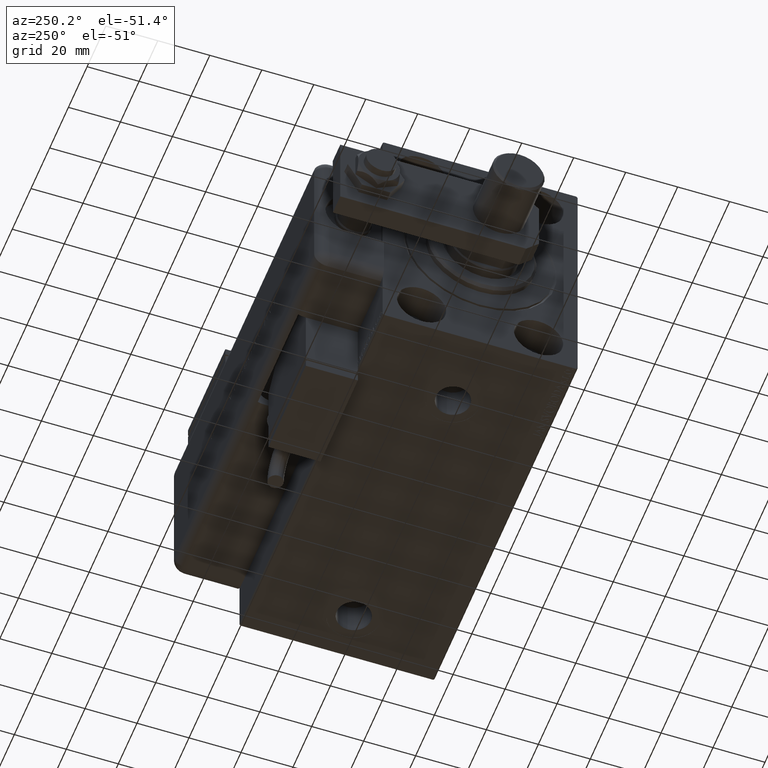
[diagram: clean part render]
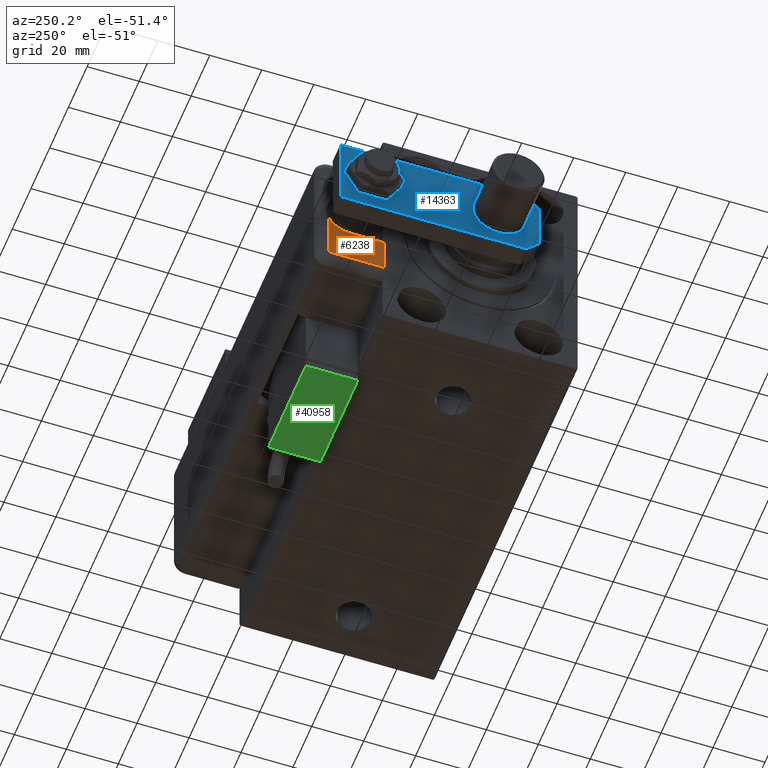
[diagram: same view with three faces highlighted in distinct colors, each labeled with its STEP entity id]
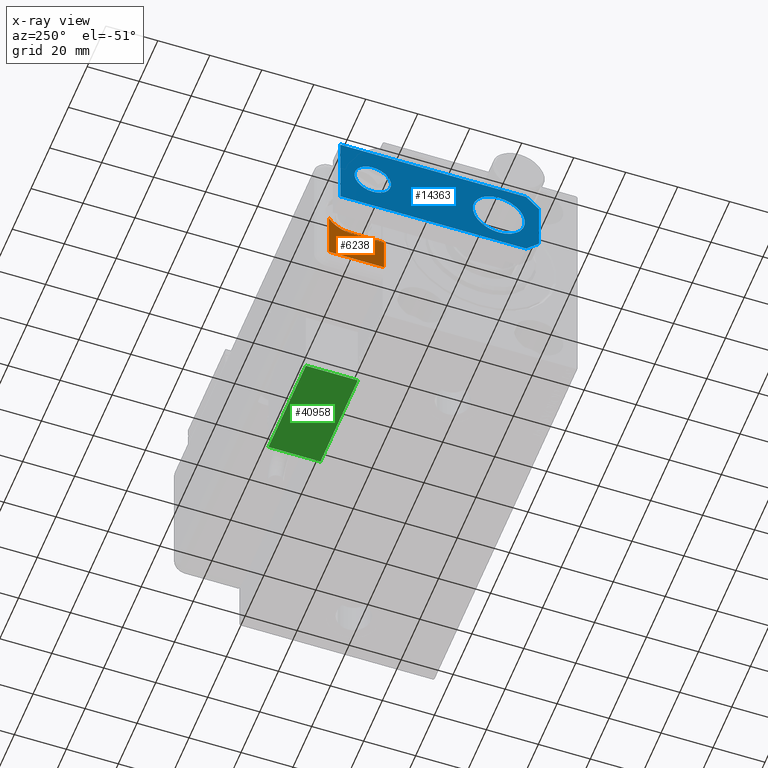
[diagram: x-ray of the same camera — body ghosted, the three highlighted faces saturated]
A machine part, auxiliary view with three faces highlighted in distinct colors.
The next image is the same camera in x-ray (body ghosted, the three faces saturated) — at least one of them is partly hidden behind the body in this view.
Their STEP definitions:

[orange] entity #6238 — the highlighted planar face has unit normal (-1, 0, 0).
#1084 = DIRECTION ( 'NONE',  ( 0.000000000000000000, 0.000000000000000000, 1.000000000000000000 ) ) ;
#3536 = VECTOR ( 'NONE', #53879, 1000.000000000000000 ) ;
#3571 = CARTESIAN_POINT ( 'NONE',  ( -23.99999999999999289, 21.21742430504414045, 157.0000000000000000 ) ) ;
#3728 = AXIS2_PLACEMENT_3D ( 'NONE', #57750, #1084, #24432 ) ;
#6238 = ADVANCED_FACE ( 'NONE', ( #12013 ), #16678, .T. ) ;
#7146 = CARTESIAN_POINT ( 'NONE',  ( -28.99999999999999645, -9.421223957302265857E-15, 157.0000000000000000 ) ) ;
#9196 = ORIENTED_EDGE ( 'NONE', *, *, #16487, .T. ) ;
#9759 = ORIENTED_EDGE ( 'NONE', *, *, #24083, .T. ) ;
#9833 = DIRECTION ( 'NONE',  ( 1.000000000000000000, 0.000000000000000000, 0.000000000000000000 ) ) ;
#10617 = AXIS2_PLACEMENT_3D ( 'NONE', #35661, #44408, #49066 ) ;
#10988 = ORIENTED_EDGE ( 'NONE', *, *, #40543, .F. ) ;
#11682 = EDGE_CURVE ( 'NONE', #26626, #50804, #45473, .T. ) ;
#12013 = FACE_OUTER_BOUND ( 'NONE', #44081, .T. ) ;
#13239 = ORIENTED_EDGE ( 'NONE', *, *, #32956, .T. ) ;
#13275 = VECTOR ( 'NONE', #30064, 1000.000000000000000 ) ;
#13518 = ORIENTED_EDGE ( 'NONE', *, *, #11682, .F. ) ;
#14655 = CIRCLE ( 'NONE', #19640, 0.4174243050441631131 ) ;
#16487 = EDGE_CURVE ( 'NONE', #20552, #30161, #20253, .T. ) ;
#16677 = LINE ( 'NONE', #21335, #13275 ) ;
#16678 = PLANE ( 'NONE',  #10617 ) ;
#19640 = AXIS2_PLACEMENT_3D ( 'NONE', #25351, #38762, #9833 ) ;
#20253 = LINE ( 'NONE', #7146, #3536 ) ;
#20552 = VERTEX_POINT ( 'NONE', #45385 ) ;
#21335 = CARTESIAN_POINT ( 'NONE',  ( -24.41742430504415751, -1.040834085586084257E-14, 157.0000000000000000 ) ) ;
#24083 = EDGE_CURVE ( 'NONE', #43912, #57854, #14655, .T. ) ;
#24432 = DIRECTION ( 'NONE',  ( 1.000000000000000000, 0.000000000000000000, 0.000000000000000000 ) ) ;
#25351 = CARTESIAN_POINT ( 'NONE',  ( -23.99999999999999645, 20.79999999999998295, 157.0000000000000000 ) ) ;
#25809 = DIRECTION ( 'NONE',  ( 1.387778820721720319E-16, -1.000000000000000000, -0.000000000000000000 ) ) ;
#26626 = VERTEX_POINT ( 'NONE', #44848 ) ;
#30064 = DIRECTION ( 'NONE',  ( -0.000000000000000000, -1.000000000000000000, 0.000000000000000000 ) ) ;
#30161 = VERTEX_POINT ( 'NONE', #33387 ) ;
#31693 = LINE ( 'NONE', #54147, #32032 ) ;
#32032 = VECTOR ( 'NONE', #25809, 1000.000000000000000 ) ;
#32956 = EDGE_CURVE ( 'NONE', #26626, #43912, #46226, .T. ) ;
#33387 = CARTESIAN_POINT ( 'NONE',  ( -10.00000000000000178, -8.673617379884035472E-16, 157.0000000000000000 ) ) ;
#35661 = CARTESIAN_POINT ( 'NONE',  ( 23.99999999999999289, 20.79999999999998295, 157.0000000000000000 ) ) ;
#38762 = DIRECTION ( 'NONE',  ( 0.000000000000000000, 0.000000000000000000, 1.000000000000000000 ) ) ;
#40543 = EDGE_CURVE ( 'NONE', #50804, #30161, #31693, .T. ) ;
#43459 = ORIENTED_EDGE ( 'NONE', *, *, #49167, .T. ) ;
#43912 = VERTEX_POINT ( 'NONE', #54749 ) ;
#44081 = EDGE_LOOP ( 'NONE', ( #10988, #13518, #13239, #9759, #43459, #9196 ) ) ;
#44408 = DIRECTION ( 'NONE',  ( 0.000000000000000000, 0.000000000000000000, 1.000000000000000000 ) ) ;
#44848 = CARTESIAN_POINT ( 'NONE',  ( -4.899643580265686360, 21.21742430504414045, 157.0000000000000000 ) ) ;
#45385 = CARTESIAN_POINT ( 'NONE',  ( -24.41742430504415751, -1.040834085586084257E-14, 157.0000000000000000 ) ) ;
#45473 = CIRCLE ( 'NONE', #3728, 10.00000000000000178 ) ;
#45926 = DIRECTION ( 'NONE',  ( -1.000000000000000000, 0.000000000000000000, -0.000000000000000000 ) ) ;
#46226 = LINE ( 'NONE', #3571, #54647 ) ;
#49066 = DIRECTION ( 'NONE',  ( 1.000000000000000000, 0.000000000000000000, -0.000000000000000000 ) ) ;
#49167 = EDGE_CURVE ( 'NONE', #57854, #20552, #16677, .T. ) ;
#50804 = VERTEX_POINT ( 'NONE', #56359 ) ;
#51525 = CARTESIAN_POINT ( 'NONE',  ( -24.41742430504416106, 20.79999999999998295, 157.0000000000000000 ) ) ;
#53879 = DIRECTION ( 'NONE',  ( 1.000000000000000000, 0.000000000000000000, 0.000000000000000000 ) ) ;
#54147 = CARTESIAN_POINT ( 'NONE',  ( -10.00000000000000178, -8.673617379884035472E-16, 157.0000000000000000 ) ) ;
#54647 = VECTOR ( 'NONE', #45926, 1000.000000000000000 ) ;
#54749 = CARTESIAN_POINT ( 'NONE',  ( -23.99999999999999645, 21.21742430504414045, 157.0000000000000000 ) ) ;
#56359 = CARTESIAN_POINT ( 'NONE',  ( -10.00000000000000355, 12.49999964024999599, 157.0000000000000000 ) ) ;
#57750 = CARTESIAN_POINT ( 'NONE',  ( -1.734723475976807094E-15, 12.49999964024999599, 157.0000000000000000 ) ) ;
#57854 = VERTEX_POINT ( 'NONE', #51525 ) ;

[blue] entity #14363 — the highlighted planar face has unit normal (1, 0, -0).
#234 = VECTOR ( 'NONE', #59417, 1000.000000000000000 ) ;
#1476 = CARTESIAN_POINT ( 'NONE',  ( 7.000000000000000000, 64.00000000000000000, 0.000000000000000000 ) ) ;
#2322 = VECTOR ( 'NONE', #25547, 1000.000000000000000 ) ;
#2656 = ORIENTED_EDGE ( 'NONE', *, *, #12311, .T. ) ;
#4357 = DIRECTION ( 'NONE',  ( 1.000000000000000000, 0.000000000000000000, 0.000000000000000000 ) ) ;
#4691 = EDGE_CURVE ( 'NONE', #44980, #47821, #19079, .T. ) ;
#5002 = CIRCLE ( 'NONE', #47757, 7.000000000000000000 ) ;
#6763 = DIRECTION ( 'NONE',  ( 0.000000000000000000, 0.000000000000000000, 1.000000000000000000 ) ) ;
#7436 = CARTESIAN_POINT ( 'NONE',  ( 0.000000000000000000, 15.50000000000000000, 0.000000000000000000 ) ) ;
#7538 = CARTESIAN_POINT ( 'NONE',  ( 1.963948872468190046E-17, 64.00000000000000000, 0.000000000000000000 ) ) ;
#7971 = VERTEX_POINT ( 'NONE', #22055 ) ;
#8711 = ORIENTED_EDGE ( 'NONE', *, *, #22688, .T. ) ;
#12311 = EDGE_CURVE ( 'NONE', #24570, #44956, #40518, .T. ) ;
#12482 = VERTEX_POINT ( 'NONE', #39983 ) ;
#12805 = EDGE_LOOP ( 'NONE', ( #32872, #41513 ) ) ;
#13549 = AXIS2_PLACEMENT_3D ( 'NONE', #7436, #36079, #26737 ) ;
#13689 = AXIS2_PLACEMENT_3D ( 'NONE', #58138, #6763, #39460 ) ;
#14115 = FACE_BOUND ( 'NONE', #12805, .T. ) ;
#14363 = ADVANCED_FACE ( 'NONE', ( #47423, #33406, #14115 ), #23437, .F. ) ;
#14901 = EDGE_CURVE ( 'NONE', #44980, #7971, #42522, .T. ) ;
#15078 = EDGE_LOOP ( 'NONE', ( #38071, #2656 ) ) ;
#15870 = CARTESIAN_POINT ( 'NONE',  ( -10.00000000000000711, 15.50000000000000000, 0.000000000000000000 ) ) ;
#17080 = LINE ( 'NONE', #49780, #234 ) ;
#17194 = DIRECTION ( 'NONE',  ( 0.000000000000000000, 0.000000000000000000, 1.000000000000000000 ) ) ;
#18137 = AXIS2_PLACEMENT_3D ( 'NONE', #42657, #60711, #4357 ) ;
#19079 = LINE ( 'NONE', #38046, #20505 ) ;
#19095 = DIRECTION ( 'NONE',  ( 1.000000000000000000, 0.000000000000000000, 0.000000000000000000 ) ) ;
#20505 = VECTOR ( 'NONE', #57045, 1000.000000000000000 ) ;
#21303 = VERTEX_POINT ( 'NONE', #41077 ) ;
#22055 = CARTESIAN_POINT ( 'NONE',  ( 9.999999999999982236, 9.629649721936179265E-32, 0.000000000000000000 ) ) ;
#22278 = EDGE_LOOP ( 'NONE', ( #45180, #8711, #31318, #36361, #38673, #54990 ) ) ;
#22688 = EDGE_CURVE ( 'NONE', #21303, #12482, #37899, .T. ) ;
#23437 = PLANE ( 'NONE',  #59452 ) ;
#24570 = VERTEX_POINT ( 'NONE', #1476 ) ;
#25300 = DIRECTION ( 'NONE',  ( 1.000000000000000000, 0.000000000000000000, 0.000000000000000000 ) ) ;
#25547 = DIRECTION ( 'NONE',  ( -1.000000000000000000, 0.000000000000000000, 0.000000000000000000 ) ) ;
#26737 = DIRECTION ( 'NONE',  ( 1.000000000000000000, 0.000000000000000000, 0.000000000000000000 ) ) ;
#31318 = ORIENTED_EDGE ( 'NONE', *, *, #40615, .F. ) ;
#32362 = EDGE_CURVE ( 'NONE', #21303, #7971, #58623, .T. ) ;
#32447 = EDGE_CURVE ( 'NONE', #44956, #24570, #5002, .T. ) ;
#32814 = VECTOR ( 'NONE', #33804, 1000.000000000000114 ) ;
#32872 = ORIENTED_EDGE ( 'NONE', *, *, #41294, .T. ) ;
#33093 = CARTESIAN_POINT ( 'NONE',  ( 0.000000000000000000, 0.000000000000000000, 0.000000000000000000 ) ) ;
#33406 = FACE_BOUND ( 'NONE', #15078, .T. ) ;
#33804 = DIRECTION ( 'NONE',  ( -0.7071067811865489050, -0.7071067811865460184, -0.000000000000000000 ) ) ;
#34824 = VECTOR ( 'NONE', #25300, 1000.000000000000000 ) ;
#36079 = DIRECTION ( 'NONE',  ( 0.000000000000000000, 0.000000000000000000, 1.000000000000000000 ) ) ;
#36361 = ORIENTED_EDGE ( 'NONE', *, *, #42804, .F. ) ;
#37276 = CARTESIAN_POINT ( 'NONE',  ( -10.00000000000001066, 9.629649721936179265E-32, 0.000000000000000000 ) ) ;
#37394 = CIRCLE ( 'NONE', #13549, 10.00000000000000711 ) ;
#37899 = LINE ( 'NONE', #37276, #41432 ) ;
#38046 = CARTESIAN_POINT ( 'NONE',  ( 15.00000000000000888, 9.629649721936179265E-32, 0.000000000000000000 ) ) ;
#38071 = ORIENTED_EDGE ( 'NONE', *, *, #32447, .T. ) ;
#38673 = ORIENTED_EDGE ( 'NONE', *, *, #4691, .F. ) ;
#39317 = CARTESIAN_POINT ( 'NONE',  ( -15.00000000000000888, 9.629649721936179265E-32, 0.000000000000000000 ) ) ;
#39460 = DIRECTION ( 'NONE',  ( 1.000000000000000000, 0.000000000000000000, 0.000000000000000000 ) ) ;
#39983 = CARTESIAN_POINT ( 'NONE',  ( -15.00000000000000888, 5.000000000000018652, 0.000000000000000000 ) ) ;
#40518 = CIRCLE ( 'NONE', #13689, 7.000000000000000000 ) ;
#40615 = EDGE_CURVE ( 'NONE', #44578, #12482, #17080, .T. ) ;
#40777 = LINE ( 'NONE', #45466, #2322 ) ;
#41077 = CARTESIAN_POINT ( 'NONE',  ( -10.00000000000001066, 9.629649721936179265E-32, 0.000000000000000000 ) ) ;
#41294 = EDGE_CURVE ( 'NONE', #50830, #61574, #50947, .T. ) ;
#41410 = CARTESIAN_POINT ( 'NONE',  ( -7.000000000000000000, 64.00000000000000000, 0.000000000000000000 ) ) ;
#41432 = VECTOR ( 'NONE', #56895, 1000.000000000000114 ) ;
#41513 = ORIENTED_EDGE ( 'NONE', *, *, #55848, .T. ) ;
#42522 = LINE ( 'NONE', #57148, #32814 ) ;
#42657 = CARTESIAN_POINT ( 'NONE',  ( 0.000000000000000000, 15.50000000000000000, 0.000000000000000000 ) ) ;
#42804 = EDGE_CURVE ( 'NONE', #47821, #44578, #40777, .T. ) ;
#44578 = VERTEX_POINT ( 'NONE', #50217 ) ;
#44956 = VERTEX_POINT ( 'NONE', #41410 ) ;
#44980 = VERTEX_POINT ( 'NONE', #55739 ) ;
#45180 = ORIENTED_EDGE ( 'NONE', *, *, #32362, .F. ) ;
#45466 = CARTESIAN_POINT ( 'NONE',  ( 15.00000000000000355, 76.50000000000000000, 0.000000000000000000 ) ) ;
#45534 = DIRECTION ( 'NONE',  ( 1.000000000000000000, 0.000000000000000000, 0.000000000000000000 ) ) ;
#47315 = CARTESIAN_POINT ( 'NONE',  ( 10.00000000000000711, 15.50000000000000178, 0.000000000000000000 ) ) ;
#47423 = FACE_OUTER_BOUND ( 'NONE', #22278, .T. ) ;
#47757 = AXIS2_PLACEMENT_3D ( 'NONE', #7538, #17194, #45534 ) ;
#47821 = VERTEX_POINT ( 'NONE', #58101 ) ;
#49780 = CARTESIAN_POINT ( 'NONE',  ( -14.99999999999999822, 76.50000000000000000, 0.000000000000000000 ) ) ;
#50217 = CARTESIAN_POINT ( 'NONE',  ( -14.99999999999999822, 76.50000000000000000, 0.000000000000000000 ) ) ;
#50830 = VERTEX_POINT ( 'NONE', #15870 ) ;
#50947 = CIRCLE ( 'NONE', #18137, 10.00000000000000711 ) ;
#54990 = ORIENTED_EDGE ( 'NONE', *, *, #14901, .T. ) ;
#55739 = CARTESIAN_POINT ( 'NONE',  ( 15.00000000000000888, 5.000000000000004441, 0.000000000000000000 ) ) ;
#55848 = EDGE_CURVE ( 'NONE', #61574, #50830, #37394, .T. ) ;
#56895 = DIRECTION ( 'NONE',  ( -0.7071067811865460184, 0.7071067811865489050, -0.000000000000000000 ) ) ;
#57045 = DIRECTION ( 'NONE',  ( -6.802837160693361638E-17, 1.000000000000000000, 0.000000000000000000 ) ) ;
#57148 = CARTESIAN_POINT ( 'NONE',  ( 15.00000000000000888, 5.000000000000004441, 0.000000000000000000 ) ) ;
#57379 = DIRECTION ( 'NONE',  ( -0.000000000000000000, 0.000000000000000000, 1.000000000000000000 ) ) ;
#58101 = CARTESIAN_POINT ( 'NONE',  ( 15.00000000000000355, 76.50000000000000000, 0.000000000000000000 ) ) ;
#58138 = CARTESIAN_POINT ( 'NONE',  ( 1.963948872468190046E-17, 64.00000000000000000, 0.000000000000000000 ) ) ;
#58623 = LINE ( 'NONE', #39317, #34824 ) ;
#59417 = DIRECTION ( 'NONE',  ( -1.360567432138672328E-16, -1.000000000000000000, 0.000000000000000000 ) ) ;
#59452 = AXIS2_PLACEMENT_3D ( 'NONE', #33093, #57379, #19095 ) ;
#60711 = DIRECTION ( 'NONE',  ( 0.000000000000000000, 0.000000000000000000, 1.000000000000000000 ) ) ;
#61574 = VERTEX_POINT ( 'NONE', #47315 ) ;

[green] entity #40958 — the highlighted planar face has unit normal (0, 0, 1).
#1945 = ORIENTED_EDGE ( 'NONE', *, *, #38951, .T. ) ;
#2040 = CARTESIAN_POINT ( 'NONE',  ( 20.00000000000005329, -17.49999999999996092, -9.999999999999998224 ) ) ;
#4571 = LINE ( 'NONE', #17973, #61127 ) ;
#5129 = VECTOR ( 'NONE', #26685, 1000.000000000000000 ) ;
#5953 = EDGE_CURVE ( 'NONE', #34698, #60471, #4571, .T. ) ;
#8624 = DIRECTION ( 'NONE',  ( -0.000000000000000000, -0.000000000000000000, -1.000000000000000000 ) ) ;
#17848 = DIRECTION ( 'NONE',  ( 0.000000000000000000, 1.000000000000000000, 0.000000000000000000 ) ) ;
#17973 = CARTESIAN_POINT ( 'NONE',  ( -19.99999999999994316, -17.49999999999996092, -9.999999999999998224 ) ) ;
#19583 = CARTESIAN_POINT ( 'NONE',  ( -19.99999999999994316, -17.49999999999996092, 10.00000000000000000 ) ) ;
#20875 = EDGE_CURVE ( 'NONE', #48663, #34698, #29453, .T. ) ;
#21021 = DIRECTION ( 'NONE',  ( 0.000000000000000000, 0.000000000000000000, 1.000000000000000000 ) ) ;
#21289 = ORIENTED_EDGE ( 'NONE', *, *, #27293, .T. ) ;
#21597 = ORIENTED_EDGE ( 'NONE', *, *, #20875, .T. ) ;
#25624 = CARTESIAN_POINT ( 'NONE',  ( -19.99999999999994316, -17.49999999999996092, -9.999999999999998224 ) ) ;
#26685 = DIRECTION ( 'NONE',  ( 1.000000000000000000, 0.000000000000000000, 0.000000000000000000 ) ) ;
#27134 = CARTESIAN_POINT ( 'NONE',  ( 20.00000000000005329, -17.49999999999996092, 10.00000000000000000 ) ) ;
#27293 = EDGE_CURVE ( 'NONE', #36075, #48663, #58397, .T. ) ;
#29453 = LINE ( 'NONE', #30893, #35410 ) ;
#30675 = VECTOR ( 'NONE', #21021, 1000.000000000000000 ) ;
#30893 = CARTESIAN_POINT ( 'NONE',  ( -19.99999999999994316, -17.49999999999996092, 10.00000000000000000 ) ) ;
#34698 = VERTEX_POINT ( 'NONE', #19583 ) ;
#35410 = VECTOR ( 'NONE', #53440, 1000.000000000000000 ) ;
#35906 = CARTESIAN_POINT ( 'NONE',  ( 0.000000000000000000, -17.49999999999996092, 0.000000000000000000 ) ) ;
#35960 = CARTESIAN_POINT ( 'NONE',  ( 20.00000000000005329, -17.49999999999996092, -9.999999999999998224 ) ) ;
#36075 = VERTEX_POINT ( 'NONE', #35960 ) ;
#38951 = EDGE_CURVE ( 'NONE', #60471, #36075, #57860, .T. ) ;
#40885 = DIRECTION ( 'NONE',  ( 0.000000000000000000, -0.000000000000000000, 1.000000000000000000 ) ) ;
#40958 = ADVANCED_FACE ( 'NONE', ( #60165 ), #49094, .F. ) ;
#42981 = AXIS2_PLACEMENT_3D ( 'NONE', #35906, #17848, #40885 ) ;
#43602 = ORIENTED_EDGE ( 'NONE', *, *, #5953, .T. ) ;
#46195 = EDGE_LOOP ( 'NONE', ( #21289, #21597, #43602, #1945 ) ) ;
#48663 = VERTEX_POINT ( 'NONE', #27134 ) ;
#49094 = PLANE ( 'NONE',  #42981 ) ;
#53440 = DIRECTION ( 'NONE',  ( -1.000000000000000000, -0.000000000000000000, -0.000000000000000000 ) ) ;
#57860 = LINE ( 'NONE', #60290, #5129 ) ;
#58397 = LINE ( 'NONE', #2040, #30675 ) ;
#60165 = FACE_OUTER_BOUND ( 'NONE', #46195, .T. ) ;
#60290 = CARTESIAN_POINT ( 'NONE',  ( -19.99999999999994316, -17.49999999999996092, -9.999999999999998224 ) ) ;
#60471 = VERTEX_POINT ( 'NONE', #25624 ) ;
#61127 = VECTOR ( 'NONE', #8624, 1000.000000000000000 ) ;